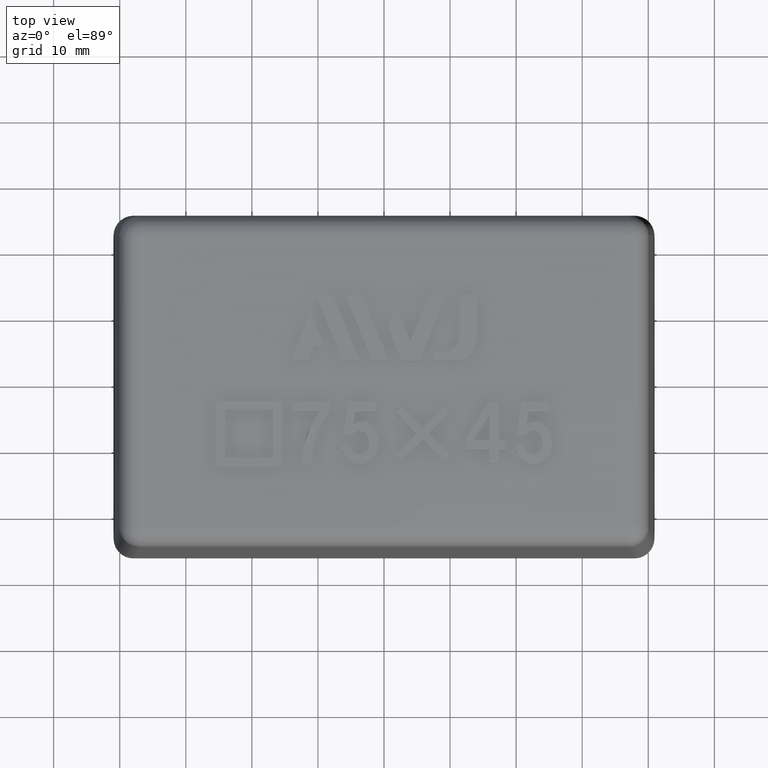
[diagram: clean part render]
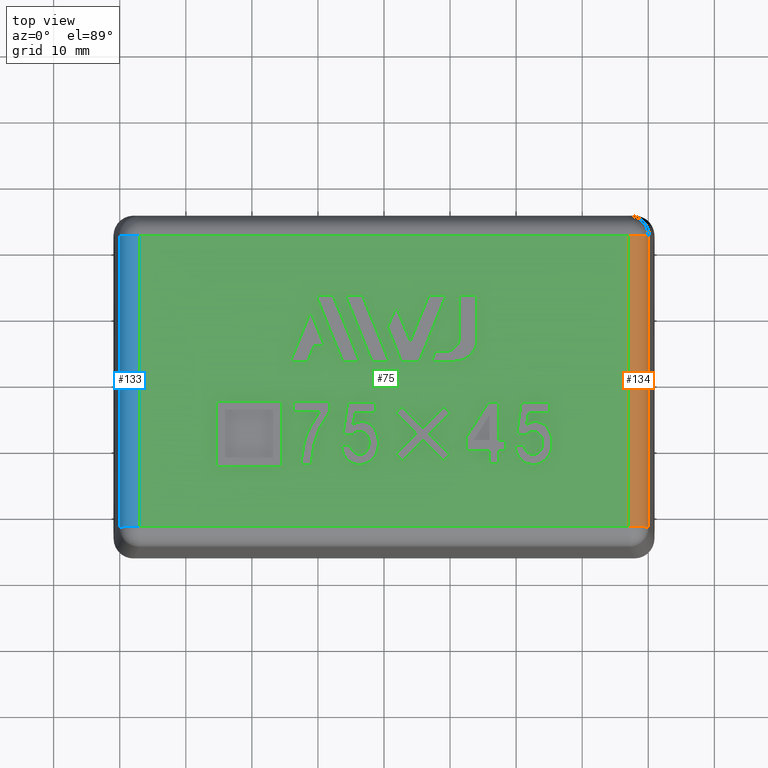
[diagram: same view with three faces highlighted in distinct colors, each labeled with its STEP entity id]
A machine part, top view with three faces highlighted in distinct colors.
Their STEP definitions:

[orange] entity #134 — the highlighted cylindrical surface (edge-blend (fillet) strip) has radius 3 mm, axis along (0, -1, 0).
#134 = ADVANCED_FACE( '', ( #336 ), #337, .T. );
#336 = FACE_OUTER_BOUND( '', #612, .T. );
#337 = CYLINDRICAL_SURFACE( '', #613, 3.00000000000000 );
#612 = EDGE_LOOP( '', ( #1304, #1305, #1306, #1307 ) );
#613 = AXIS2_PLACEMENT_3D( '', #1308, #1309, #1310 );
#1304 = ORIENTED_EDGE( '', *, *, #2053, .T. );
#1305 = ORIENTED_EDGE( '', *, *, #2054, .F. );
#1306 = ORIENTED_EDGE( '', *, *, #2048, .F. );
#1307 = ORIENTED_EDGE( '', *, *, #1895, .F. );
#1308 = CARTESIAN_POINT( '', ( 37.0631663926629, -25.5000000000000, 50.0000000000000 ) );
#1309 = DIRECTION( '', ( 0.000000000000000, -1.00000000000000, 0.000000000000000 ) );
#1310 = DIRECTION( '', ( 0.000000000000000, 0.000000000000000, 1.00000000000000 ) );
#1895 = EDGE_CURVE( '', #2271, #2272, #2273, .F. );
#2048 = EDGE_CURVE( '', #2272, #2527, #2528, .T. );
#2053 = EDGE_CURVE( '', #2271, #2534, #2535, .F. );
#2054 = EDGE_CURVE( '', #2527, #2534, #2536, .F. );
#2271 = VERTEX_POINT( '', #2900 );
#2272 = VERTEX_POINT( '', #2901 );
#2273 = LINE( '', #2902, #2903 );
#2527 = VERTEX_POINT( '', #3447 );
#2528 = CIRCLE( '', #3448, 3.00000000000000 );
#2534 = VERTEX_POINT( '', #3455 );
#2535 = CIRCLE( '', #3456, 3.00000000000000 );
#2536 = LINE( '', #3457, #3458 );
#2900 = CARTESIAN_POINT( '', ( 37.0631663926629, -22.0631663926628, 53.0000000000000 ) );
#2901 = CARTESIAN_POINT( '', ( 37.0631663926629, 22.0631663926628, 53.0000000000000 ) );
#2902 = CARTESIAN_POINT( '', ( 37.0631663926629, 25.0112581820099, 53.0000000000000 ) );
#2903 = VECTOR( '', #3776, 1000.00000000000 );
#3447 = CARTESIAN_POINT( '', ( 40.0627094781320, 22.0631663926628, 50.0523572193119 ) );
#3448 = AXIS2_PLACEMENT_3D( '', #3851, #3852, #3853 );
#3455 = CARTESIAN_POINT( '', ( 40.0627094781320, -22.0631663926628, 50.0523572193119 ) );
#3456 = AXIS2_PLACEMENT_3D( '', #3864, #3865, #3866 );
#3457 = CARTESIAN_POINT( '', ( 40.0627094781320, -25.0112581820099, 50.0523572193119 ) );
#3458 = VECTOR( '', #3867, 1000.00000000000 );
#3776 = DIRECTION( '', ( 0.000000000000000, -1.00000000000000, 0.000000000000000 ) );
#3851 = CARTESIAN_POINT( '', ( 37.0631663926629, 22.0631663926628, 50.0000000000000 ) );
#3852 = DIRECTION( '', ( 1.15665848200709E-015, 1.00000000000000, 0.000000000000000 ) );
#3853 = DIRECTION( '', ( -1.00000000000000, 1.15665848200709E-015, 0.000000000000000 ) );
#3864 = CARTESIAN_POINT( '', ( 37.0631663926628, -22.0631663926628, 50.0000000000000 ) );
#3865 = DIRECTION( '', ( -2.01864739371190E-017, -1.00000000000000, 1.15648231731787E-015 ) );
#3866 = DIRECTION( '', ( 0.000000000000000, -1.15648231731787E-015, -1.00000000000000 ) );
#3867 = DIRECTION( '', ( 0.000000000000000, 1.00000000000000, 0.000000000000000 ) );

[blue] entity #133 — the highlighted cylindrical surface (edge-blend (fillet) strip) has radius 3 mm, axis along (0, 1, 0).
#133 = ADVANCED_FACE( '', ( #334 ), #335, .T. );
#334 = FACE_OUTER_BOUND( '', #610, .T. );
#335 = CYLINDRICAL_SURFACE( '', #611, 3.00000000000000 );
#610 = EDGE_LOOP( '', ( #1297, #1298, #1299, #1300 ) );
#611 = AXIS2_PLACEMENT_3D( '', #1301, #1302, #1303 );
#1297 = ORIENTED_EDGE( '', *, *, #2052, .T. );
#1298 = ORIENTED_EDGE( '', *, *, #1897, .F. );
#1299 = ORIENTED_EDGE( '', *, *, #2047, .F. );
#1300 = ORIENTED_EDGE( '', *, *, #1930, .F. );
#1301 = CARTESIAN_POINT( '', ( -37.0631663926628, -25.5000000000000, 50.0000000000000 ) );
#1302 = DIRECTION( '', ( 0.000000000000000, 1.00000000000000, 0.000000000000000 ) );
#1303 = DIRECTION( '', ( 0.000000000000000, 0.000000000000000, -1.00000000000000 ) );
#1897 = EDGE_CURVE( '', #2274, #2276, #2277, .F. );
#1930 = EDGE_CURVE( '', #2340, #2342, #2343, .F. );
#2047 = EDGE_CURVE( '', #2342, #2274, #2526, .T. );
#2052 = EDGE_CURVE( '', #2340, #2276, #2533, .F. );
#2274 = VERTEX_POINT( '', #2904 );
#2276 = VERTEX_POINT( '', #2907 );
#2277 = LINE( '', #2908, #2909 );
#2340 = VERTEX_POINT( '', #3056 );
#2342 = VERTEX_POINT( '', #3059 );
#2343 = LINE( '', #3060, #3061 );
#2526 = CIRCLE( '', #3446, 3.00000000000000 );
#2533 = CIRCLE( '', #3454, 3.00000000000000 );
#2904 = CARTESIAN_POINT( '', ( -37.0631663926628, 22.0631663926628, 53.0000000000000 ) );
#2907 = CARTESIAN_POINT( '', ( -37.0631663926628, -22.0631663926628, 53.0000000000000 ) );
#2908 = CARTESIAN_POINT( '', ( -37.0631663926628, -25.0112581820099, 53.0000000000000 ) );
#2909 = VECTOR( '', #3778, 1000.00000000000 );
#3056 = CARTESIAN_POINT( '', ( -40.0627094781320, -22.0631663926628, 50.0523572193119 ) );
#3059 = CARTESIAN_POINT( '', ( -40.0627094781320, 22.0631663926628, 50.0523572193119 ) );
#3060 = CARTESIAN_POINT( '', ( -40.0627094781320, 25.0112581820099, 50.0523572193119 ) );
#3061 = VECTOR( '', #3782, 1000.00000000000 );
#3446 = AXIS2_PLACEMENT_3D( '', #3848, #3849, #3850 );
#3454 = AXIS2_PLACEMENT_3D( '', #3861, #3862, #3863 );
#3778 = DIRECTION( '', ( 0.000000000000000, 1.00000000000000, 0.000000000000000 ) );
#3782 = DIRECTION( '', ( 0.000000000000000, -1.00000000000000, 0.000000000000000 ) );
#3848 = CARTESIAN_POINT( '', ( -37.0631663926628, 22.0631663926628, 50.0000000000000 ) );
#3849 = DIRECTION( '', ( -2.01864739371190E-017, 1.00000000000000, -1.15648231731787E-015 ) );
#3850 = DIRECTION( '', ( 0.000000000000000, 1.15648231731787E-015, 1.00000000000000 ) );
#3861 = CARTESIAN_POINT( '', ( -37.0631663926628, -22.0631663926628, 50.0000000000000 ) );
#3862 = DIRECTION( '', ( 0.000000000000000, -1.00000000000000, 0.000000000000000 ) );
#3863 = DIRECTION( '', ( 0.000000000000000, 0.000000000000000, -1.00000000000000 ) );

[green] entity #75 — the highlighted planar face has unit normal (0, 0, 1).
#75 = ADVANCED_FACE( '', ( #205, #206, #207, #208, #209, #210, #211, #212, #213, #214, #215, #216 ), #217, .T. );
#205 = FACE_BOUND( '', #477, .T. );
#206 = FACE_BOUND( '', #478, .T. );
#207 = FACE_BOUND( '', #479, .T. );
#208 = FACE_BOUND( '', #480, .T. );
#209 = FACE_BOUND( '', #481, .T. );
#210 = FACE_BOUND( '', #482, .T. );
#211 = FACE_BOUND( '', #483, .T. );
#212 = FACE_BOUND( '', #484, .T. );
#213 = FACE_OUTER_BOUND( '', #485, .T. );
#214 = FACE_BOUND( '', #486, .T. );
#215 = FACE_BOUND( '', #487, .T. );
#216 = FACE_BOUND( '', #488, .T. );
#217 = PLANE( '', #489 );
#477 = EDGE_LOOP( '', ( #757, #758, #759, #760, #761 ) );
#478 = EDGE_LOOP( '', ( #762, #763, #764, #765 ) );
#479 = EDGE_LOOP( '', ( #766, #767, #768, #769 ) );
#480 = EDGE_LOOP( '', ( #770, #771, #772, #773, #774, #775, #776 ) );
#481 = EDGE_LOOP( '', ( #777, #778, #779, #780, #781, #782, #783, #784 ) );
#482 = EDGE_LOOP( '', ( #785, #786, #787, #788, #789, #790, #791, #792, #793, #794, #795 ) );
#483 = EDGE_LOOP( '', ( #796, #797, #798, #799, #800, #801, #802, #803, #804, #805 ) );
#484 = EDGE_LOOP( '', ( #806, #807, #808, #809 ) );
#485 = EDGE_LOOP( '', ( #810, #811, #812, #813 ) );
#486 = EDGE_LOOP( '', ( #814, #815, #816, #817, #818, #819, #820 ) );
#487 = EDGE_LOOP( '', ( #821, #822, #823, #824, #825, #826, #827, #828, #829, #830, #831, #832 ) );
#488 = EDGE_LOOP( '', ( #833, #834, #835, #836, #837, #838, #839, #840, #841, #842 ) );
#489 = AXIS2_PLACEMENT_3D( '', #843, #844, #845 );
#757 = ORIENTED_EDGE( '', *, *, #1842, .F. );
#758 = ORIENTED_EDGE( '', *, *, #1843, .F. );
#759 = ORIENTED_EDGE( '', *, *, #1844, .F. );
#760 = ORIENTED_EDGE( '', *, *, #1845, .F. );
#761 = ORIENTED_EDGE( '', *, *, #1846, .F. );
#762 = ORIENTED_EDGE( '', *, *, #1847, .F. );
#763 = ORIENTED_EDGE( '', *, *, #1848, .F. );
#764 = ORIENTED_EDGE( '', *, *, #1849, .F. );
#765 = ORIENTED_EDGE( '', *, *, #1850, .F. );
#766 = ORIENTED_EDGE( '', *, *, #1851, .F. );
#767 = ORIENTED_EDGE( '', *, *, #1852, .F. );
#768 = ORIENTED_EDGE( '', *, *, #1853, .F. );
#769 = ORIENTED_EDGE( '', *, *, #1854, .F. );
#770 = ORIENTED_EDGE( '', *, *, #1855, .F. );
#771 = ORIENTED_EDGE( '', *, *, #1856, .F. );
#772 = ORIENTED_EDGE( '', *, *, #1857, .F. );
#773 = ORIENTED_EDGE( '', *, *, #1858, .F. );
#774 = ORIENTED_EDGE( '', *, *, #1859, .F. );
#775 = ORIENTED_EDGE( '', *, *, #1860, .F. );
#776 = ORIENTED_EDGE( '', *, *, #1861, .F. );
#777 = ORIENTED_EDGE( '', *, *, #1862, .F. );
#778 = ORIENTED_EDGE( '', *, *, #1863, .F. );
#779 = ORIENTED_EDGE( '', *, *, #1864, .F. );
#780 = ORIENTED_EDGE( '', *, *, #1865, .F. );
#781 = ORIENTED_EDGE( '', *, *, #1866, .F. );
#782 = ORIENTED_EDGE( '', *, *, #1867, .F. );
#783 = ORIENTED_EDGE( '', *, *, #1868, .F. );
#784 = ORIENTED_EDGE( '', *, *, #1869, .F. );
#785 = ORIENTED_EDGE( '', *, *, #1870, .T. );
#786 = ORIENTED_EDGE( '', *, *, #1871, .T. );
#787 = ORIENTED_EDGE( '', *, *, #1872, .T. );
#788 = ORIENTED_EDGE( '', *, *, #1873, .T. );
#789 = ORIENTED_EDGE( '', *, *, #1874, .T. );
#790 = ORIENTED_EDGE( '', *, *, #1875, .T. );
#791 = ORIENTED_EDGE( '', *, *, #1876, .T. );
#792 = ORIENTED_EDGE( '', *, *, #1877, .T. );
#793 = ORIENTED_EDGE( '', *, *, #1878, .T. );
#794 = ORIENTED_EDGE( '', *, *, #1879, .T. );
#795 = ORIENTED_EDGE( '', *, *, #1880, .T. );
#796 = ORIENTED_EDGE( '', *, *, #1881, .T. );
#797 = ORIENTED_EDGE( '', *, *, #1882, .T. );
#798 = ORIENTED_EDGE( '', *, *, #1883, .T. );
#799 = ORIENTED_EDGE( '', *, *, #1884, .T. );
#800 = ORIENTED_EDGE( '', *, *, #1885, .T. );
#801 = ORIENTED_EDGE( '', *, *, #1886, .T. );
#802 = ORIENTED_EDGE( '', *, *, #1887, .T. );
#803 = ORIENTED_EDGE( '', *, *, #1888, .T. );
#804 = ORIENTED_EDGE( '', *, *, #1889, .T. );
#805 = ORIENTED_EDGE( '', *, *, #1890, .T. );
#806 = ORIENTED_EDGE( '', *, *, #1891, .T. );
#807 = ORIENTED_EDGE( '', *, *, #1892, .T. );
#808 = ORIENTED_EDGE( '', *, *, #1893, .T. );
#809 = ORIENTED_EDGE( '', *, *, #1894, .T. );
#810 = ORIENTED_EDGE( '', *, *, #1895, .T. );
#811 = ORIENTED_EDGE( '', *, *, #1896, .T. );
#812 = ORIENTED_EDGE( '', *, *, #1897, .T. );
#813 = ORIENTED_EDGE( '', *, *, #1898, .T. );
#814 = ORIENTED_EDGE( '', *, *, #1899, .T. );
#815 = ORIENTED_EDGE( '', *, *, #1900, .T. );
#816 = ORIENTED_EDGE( '', *, *, #1901, .T. );
#817 = ORIENTED_EDGE( '', *, *, #1902, .T. );
#818 = ORIENTED_EDGE( '', *, *, #1903, .T. );
#819 = ORIENTED_EDGE( '', *, *, #1904, .T. );
#820 = ORIENTED_EDGE( '', *, *, #1905, .T. );
#821 = ORIENTED_EDGE( '', *, *, #1906, .T. );
#822 = ORIENTED_EDGE( '', *, *, #1907, .T. );
#823 = ORIENTED_EDGE( '', *, *, #1908, .T. );
#824 = ORIENTED_EDGE( '', *, *, #1909, .T. );
#825 = ORIENTED_EDGE( '', *, *, #1910, .T. );
#826 = ORIENTED_EDGE( '', *, *, #1911, .T. );
#827 = ORIENTED_EDGE( '', *, *, #1912, .T. );
#828 = ORIENTED_EDGE( '', *, *, #1913, .T. );
#829 = ORIENTED_EDGE( '', *, *, #1914, .T. );
#830 = ORIENTED_EDGE( '', *, *, #1915, .T. );
#831 = ORIENTED_EDGE( '', *, *, #1916, .T. );
#832 = ORIENTED_EDGE( '', *, *, #1917, .T. );
#833 = ORIENTED_EDGE( '', *, *, #1918, .T. );
#834 = ORIENTED_EDGE( '', *, *, #1919, .T. );
#835 = ORIENTED_EDGE( '', *, *, #1920, .T. );
#836 = ORIENTED_EDGE( '', *, *, #1921, .T. );
#837 = ORIENTED_EDGE( '', *, *, #1922, .T. );
#838 = ORIENTED_EDGE( '', *, *, #1923, .T. );
#839 = ORIENTED_EDGE( '', *, *, #1924, .T. );
#840 = ORIENTED_EDGE( '', *, *, #1925, .T. );
#841 = ORIENTED_EDGE( '', *, *, #1926, .T. );
#842 = ORIENTED_EDGE( '', *, *, #1927, .T. );
#843 = CARTESIAN_POINT( '', ( -40.5000000000000, -25.5000000000000, 53.0000000000000 ) );
#844 = DIRECTION( '', ( 0.000000000000000, 0.000000000000000, 1.00000000000000 ) );
#845 = DIRECTION( '', ( 0.000000000000000, -1.00000000000000, 0.000000000000000 ) );
#1842 = EDGE_CURVE( '', #2165, #2166, #2167, .T. );
#1843 = EDGE_CURVE( '', #2168, #2165, #2169, .T. );
#1844 = EDGE_CURVE( '', #2170, #2168, #2171, .T. );
#1845 = EDGE_CURVE( '', #2172, #2170, #2173, .T. );
#1846 = EDGE_CURVE( '', #2166, #2172, #2174, .T. );
#1847 = EDGE_CURVE( '', #2175, #2176, #2177, .T. );
#1848 = EDGE_CURVE( '', #2178, #2175, #2179, .T. );
#1849 = EDGE_CURVE( '', #2180, #2178, #2181, .T. );
#1850 = EDGE_CURVE( '', #2176, #2180, #2182, .T. );
#1851 = EDGE_CURVE( '', #2183, #2184, #2185, .T. );
#1852 = EDGE_CURVE( '', #2186, #2183, #2187, .T. );
#1853 = EDGE_CURVE( '', #2188, #2186, #2189, .T. );
#1854 = EDGE_CURVE( '', #2184, #2188, #2190, .T. );
#1855 = EDGE_CURVE( '', #2191, #2192, #2193, .T. );
#1856 = EDGE_CURVE( '', #2194, #2191, #2195, .T. );
#1857 = EDGE_CURVE( '', #2196, #2194, #2197, .T. );
#1858 = EDGE_CURVE( '', #2198, #2196, #2199, .T. );
#1859 = EDGE_CURVE( '', #2200, #2198, #2201, .T. );
#1860 = EDGE_CURVE( '', #2202, #2200, #2203, .T. );
#1861 = EDGE_CURVE( '', #2192, #2202, #2204, .T. );
#1862 = EDGE_CURVE( '', #2205, #2206, #2207, .T. );
#1863 = EDGE_CURVE( '', #2208, #2205, #2209, .T. );
#1864 = EDGE_CURVE( '', #2210, #2208, #2211, .T. );
#1865 = EDGE_CURVE( '', #2212, #2210, #2213, .T. );
#1866 = EDGE_CURVE( '', #2214, #2212, #2215, .T. );
#1867 = EDGE_CURVE( '', #2216, #2214, #2217, .T. );
#1868 = EDGE_CURVE( '', #2218, #2216, #2219, .T. );
#1869 = EDGE_CURVE( '', #2206, #2218, #2220, .T. );
#1870 = EDGE_CURVE( '', #2221, #2222, #2223, .T. );
#1871 = EDGE_CURVE( '', #2222, #2224, #2225, .T. );
#1872 = EDGE_CURVE( '', #2224, #2226, #2227, .T. );
#1873 = EDGE_CURVE( '', #2226, #2228, #2229, .T. );
#1874 = EDGE_CURVE( '', #2228, #2230, #2231, .T. );
#1875 = EDGE_CURVE( '', #2230, #2232, #2233, .T. );
#1876 = EDGE_CURVE( '', #2232, #2234, #2235, .T. );
#1877 = EDGE_CURVE( '', #2234, #2236, #2237, .T. );
#1878 = EDGE_CURVE( '', #2236, #2238, #2239, .T. );
#1879 = EDGE_CURVE( '', #2238, #2240, #2241, .T. );
#1880 = EDGE_CURVE( '', #2240, #2221, #2242, .T. );
#1881 = EDGE_CURVE( '', #2243, #2244, #2245, .T. );
#1882 = EDGE_CURVE( '', #2244, #2246, #2247, .T. );
#1883 = EDGE_CURVE( '', #2246, #2248, #2249, .T. );
#1884 = EDGE_CURVE( '', #2248, #2250, #2251, .T. );
#1885 = EDGE_CURVE( '', #2250, #2252, #2253, .T. );
#1886 = EDGE_CURVE( '', #2252, #2254, #2255, .T. );
#1887 = EDGE_CURVE( '', #2254, #2256, #2257, .T. );
#1888 = EDGE_CURVE( '', #2256, #2258, #2259, .T. );
#1889 = EDGE_CURVE( '', #2258, #2260, #2261, .T. );
#1890 = EDGE_CURVE( '', #2260, #2243, #2262, .T. );
#1891 = EDGE_CURVE( '', #2263, #2264, #2265, .T. );
#1892 = EDGE_CURVE( '', #2264, #2266, #2267, .T. );
#1893 = EDGE_CURVE( '', #2266, #2268, #2269, .T. );
#1894 = EDGE_CURVE( '', #2268, #2263, #2270, .T. );
#1895 = EDGE_CURVE( '', #2271, #2272, #2273, .F. );
#1896 = EDGE_CURVE( '', #2272, #2274, #2275, .F. );
#1897 = EDGE_CURVE( '', #2274, #2276, #2277, .F. );
#1898 = EDGE_CURVE( '', #2276, #2271, #2278, .F. );
#1899 = EDGE_CURVE( '', #2279, #2280, #2281, .T. );
#1900 = EDGE_CURVE( '', #2280, #2282, #2283, .T. );
#1901 = EDGE_CURVE( '', #2282, #2284, #2285, .T. );
#1902 = EDGE_CURVE( '', #2284, #2286, #2287, .T. );
#1903 = EDGE_CURVE( '', #2286, #2288, #2289, .T. );
#1904 = EDGE_CURVE( '', #2288, #2290, #2291, .T. );
#1905 = EDGE_CURVE( '', #2290, #2279, #2292, .T. );
#1906 = EDGE_CURVE( '', #2293, #2294, #2295, .T. );
#1907 = EDGE_CURVE( '', #2294, #2296, #2297, .T. );
#1908 = EDGE_CURVE( '', #2296, #2298, #2299, .T. );
#1909 = EDGE_CURVE( '', #2298, #2300, #2301, .T. );
#1910 = EDGE_CURVE( '', #2300, #2302, #2303, .T. );
#1911 = EDGE_CURVE( '', #2302, #2304, #2305, .T. );
#1912 = EDGE_CURVE( '', #2304, #2306, #2307, .T. );
#1913 = EDGE_CURVE( '', #2306, #2308, #2309, .T. );
#1914 = EDGE_CURVE( '', #2308, #2310, #2311, .T. );
#1915 = EDGE_CURVE( '', #2310, #2312, #2313, .T. );
#1916 = EDGE_CURVE( '', #2312, #2314, #2315, .T. );
#1917 = EDGE_CURVE( '', #2314, #2293, #2316, .T. );
#1918 = EDGE_CURVE( '', #2317, #2318, #2319, .T. );
#1919 = EDGE_CURVE( '', #2318, #2320, #2321, .T. );
#1920 = EDGE_CURVE( '', #2320, #2322, #2323, .T. );
#1921 = EDGE_CURVE( '', #2322, #2324, #2325, .T. );
#1922 = EDGE_CURVE( '', #2324, #2326, #2327, .T. );
#1923 = EDGE_CURVE( '', #2326, #2328, #2329, .T. );
#1924 = EDGE_CURVE( '', #2328, #2330, #2331, .T. );
#1925 = EDGE_CURVE( '', #2330, #2332, #2333, .T. );
#1926 = EDGE_CURVE( '', #2332, #2334, #2335, .T. );
#1927 = EDGE_CURVE( '', #2334, #2317, #2336, .T. );
#2165 = VERTEX_POINT( '', #2698 );
#2166 = VERTEX_POINT( '', #2699 );
#2167 = LINE( '', #2700, #2701 );
#2168 = VERTEX_POINT( '', #2702 );
#2169 = LINE( '', #2703, #2704 );
#2170 = VERTEX_POINT( '', #2705 );
#2171 = LINE( '', #2706, #2707 );
#2172 = VERTEX_POINT( '', #2708 );
#2173 = LINE( '', #2709, #2710 );
#2174 = LINE( '', #2711, #2712 );
#2175 = VERTEX_POINT( '', #2713 );
#2176 = VERTEX_POINT( '', #2714 );
#2177 = LINE( '', #2715, #2716 );
#2178 = VERTEX_POINT( '', #2717 );
#2179 = LINE( '', #2718, #2719 );
#2180 = VERTEX_POINT( '', #2720 );
#2181 = LINE( '', #2721, #2722 );
#2182 = LINE( '', #2723, #2724 );
#2183 = VERTEX_POINT( '', #2725 );
#2184 = VERTEX_POINT( '', #2726 );
#2185 = LINE( '', #2727, #2728 );
#2186 = VERTEX_POINT( '', #2729 );
#2187 = LINE( '', #2730, #2731 );
#2188 = VERTEX_POINT( '', #2732 );
#2189 = LINE( '', #2733, #2734 );
#2190 = LINE( '', #2735, #2736 );
#2191 = VERTEX_POINT( '', #2737 );
#2192 = VERTEX_POINT( '', #2738 );
#2193 = LINE( '', #2739, #2740 );
#2194 = VERTEX_POINT( '', #2741 );
#2195 = LINE( '', #2742, #2743 );
#2196 = VERTEX_POINT( '', #2744 );
#2197 = LINE( '', #2745, #2746 );
#2198 = VERTEX_POINT( '', #2747 );
#2199 = LINE( '', #2748, #2749 );
#2200 = VERTEX_POINT( '', #2750 );
#2201 = LINE( '', #2751, #2752 );
#2202 = VERTEX_POINT( '', #2753 );
#2203 = LINE( '', #2754, #2755 );
#2204 = LINE( '', #2756, #2757 );
#2205 = VERTEX_POINT( '', #2758 );
#2206 = VERTEX_POINT( '', #2759 );
#2207 = LINE( '', #2760, #2761 );
#2208 = VERTEX_POINT( '', #2762 );
#2209 = LINE( '', #2763, #2764 );
#2210 = VERTEX_POINT( '', #2765 );
#2211 = LINE( '', #2766, #2767 );
#2212 = VERTEX_POINT( '', #2768 );
#2213 = CIRCLE( '', #2769, 3.33666750000000 );
#2214 = VERTEX_POINT( '', #2770 );
#2215 = LINE( '', #2771, #2772 );
#2216 = VERTEX_POINT( '', #2773 );
#2217 = LINE( '', #2774, #2775 );
#2218 = VERTEX_POINT( '', #2776 );
#2219 = LINE( '', #2777, #2778 );
#2220 = CIRCLE( '', #2779, 2.22444500000000 );
#2221 = VERTEX_POINT( '', #2780 );
#2222 = VERTEX_POINT( '', #2781 );
#2223 = B_SPLINE_CURVE_WITH_KNOTS( '', 2, ( #2782, #2783, #2784 ), .UNSPECIFIED., .F., .F., ( 3, 3 ), ( 10.0000000000000, 11.0000000000000 ), .UNSPECIFIED. );
#2224 = VERTEX_POINT( '', #2785 );
#2225 = B_SPLINE_CURVE_WITH_KNOTS( '', 2, ( #2786, #2787, #2788 ), .UNSPECIFIED., .F., .F., ( 3, 3 ), ( 0.000000000000000, 1.00000000000000 ), .UNSPECIFIED. );
#2226 = VERTEX_POINT( '', #2789 );
#2227 = B_SPLINE_CURVE_WITH_KNOTS( '', 2, ( #2790, #2791, #2792 ), .UNSPECIFIED., .F., .F., ( 3, 3 ), ( 1.00000000000000, 2.00000000000000 ), .UNSPECIFIED. );
#2228 = VERTEX_POINT( '', #2793 );
#2229 = B_SPLINE_CURVE_WITH_KNOTS( '', 2, ( #2794, #2795, #2796 ), .UNSPECIFIED., .F., .F., ( 3, 3 ), ( 2.00000000000000, 3.00000000000000 ), .UNSPECIFIED. );
#2230 = VERTEX_POINT( '', #2797 );
#2231 = B_SPLINE_CURVE_WITH_KNOTS( '', 2, ( #2798, #2799, #2800 ), .UNSPECIFIED., .F., .F., ( 3, 3 ), ( 3.00000000000000, 4.00000000000000 ), .UNSPECIFIED. );
#2232 = VERTEX_POINT( '', #2801 );
#2233 = B_SPLINE_CURVE_WITH_KNOTS( '', 2, ( #2802, #2803, #2804 ), .UNSPECIFIED., .F., .F., ( 3, 3 ), ( 4.00000000000000, 5.00000000000000 ), .UNSPECIFIED. );
#2234 = VERTEX_POINT( '', #2805 );
#2235 = B_SPLINE_CURVE_WITH_KNOTS( '', 2, ( #2806, #2807, #2808 ), .UNSPECIFIED., .F., .F., ( 3, 3 ), ( 5.00000000000000, 6.00000000000000 ), .UNSPECIFIED. );
#2236 = VERTEX_POINT( '', #2809 );
#2237 = B_SPLINE_CURVE_WITH_KNOTS( '', 2, ( #2810, #2811, #2812 ), .UNSPECIFIED., .F., .F., ( 3, 3 ), ( 6.00000000000000, 7.00000000000000 ), .UNSPECIFIED. );
#2238 = VERTEX_POINT( '', #2813 );
#2239 = B_SPLINE_CURVE_WITH_KNOTS( '', 2, ( #2814, #2815, #2816 ), .UNSPECIFIED., .F., .F., ( 3, 3 ), ( 7.00000000000000, 8.00000000000000 ), .UNSPECIFIED. );
#2240 = VERTEX_POINT( '', #2817 );
#2241 = B_SPLINE_CURVE_WITH_KNOTS( '', 2, ( #2818, #2819, #2820 ), .UNSPECIFIED., .F., .F., ( 3, 3 ), ( 8.00000000000000, 9.00000000000000 ), .UNSPECIFIED. );
#2242 = B_SPLINE_CURVE_WITH_KNOTS( '', 2, ( #2821, #2822, #2823 ), .UNSPECIFIED., .F., .F., ( 3, 3 ), ( 9.00000000000000, 10.0000000000000 ), .UNSPECIFIED. );
#2243 = VERTEX_POINT( '', #2824 );
#2244 = VERTEX_POINT( '', #2825 );
#2245 = B_SPLINE_CURVE_WITH_KNOTS( '', 2, ( #2826, #2827, #2828, #2829, #2830, #2831, #2832, #2833, #2834, #2835, #2836, #2837, #2838 ), .UNSPECIFIED., .F., .F., ( 3, 2, 2, 2, 2, 2, 3 ), ( 14.0000000000000, 15.0000000000000, 16.0000000000000, 17.0000000000000, 18.0000000000000, 19.0000000000000, 20.0000000000000 ), .UNSPECIFIED. );
#2246 = VERTEX_POINT( '', #2839 );
#2247 = B_SPLINE_CURVE_WITH_KNOTS( '', 2, ( #2840, #2841, #2842 ), .UNSPECIFIED., .F., .F., ( 3, 3 ), ( 0.000000000000000, 1.00000000000000 ), .UNSPECIFIED. );
#2248 = VERTEX_POINT( '', #2843 );
#2249 = B_SPLINE_CURVE_WITH_KNOTS( '', 2, ( #2844, #2845, #2846 ), .UNSPECIFIED., .F., .F., ( 3, 3 ), ( 1.00000000000000, 2.00000000000000 ), .UNSPECIFIED. );
#2250 = VERTEX_POINT( '', #2847 );
#2251 = B_SPLINE_CURVE_WITH_KNOTS( '', 2, ( #2848, #2849, #2850, #2851, #2852, #2853, #2854, #2855, #2856, #2857, #2858, #2859, #2860 ), .UNSPECIFIED., .F., .F., ( 3, 2, 2, 2, 2, 2, 3 ), ( 2.00000000000000, 3.00000000000000, 4.00000000000000, 5.00000000000000, 6.00000000000000, 7.00000000000000, 8.00000000000000 ), .UNSPECIFIED. );
#2252 = VERTEX_POINT( '', #2861 );
#2253 = B_SPLINE_CURVE_WITH_KNOTS( '', 2, ( #2862, #2863, #2864 ), .UNSPECIFIED., .F., .F., ( 3, 3 ), ( 8.00000000000000, 9.00000000000000 ), .UNSPECIFIED. );
#2254 = VERTEX_POINT( '', #2865 );
#2255 = B_SPLINE_CURVE_WITH_KNOTS( '', 2, ( #2866, #2867, #2868 ), .UNSPECIFIED., .F., .F., ( 3, 3 ), ( 9.00000000000000, 10.0000000000000 ), .UNSPECIFIED. );
#2256 = VERTEX_POINT( '', #2869 );
#2257 = B_SPLINE_CURVE_WITH_KNOTS( '', 2, ( #2870, #2871, #2872 ), .UNSPECIFIED., .F., .F., ( 3, 3 ), ( 10.0000000000000, 11.0000000000000 ), .UNSPECIFIED. );
#2258 = VERTEX_POINT( '', #2873 );
#2259 = B_SPLINE_CURVE_WITH_KNOTS( '', 2, ( #2874, #2875, #2876 ), .UNSPECIFIED., .F., .F., ( 3, 3 ), ( 11.0000000000000, 12.0000000000000 ), .UNSPECIFIED. );
#2260 = VERTEX_POINT( '', #2877 );
#2261 = B_SPLINE_CURVE_WITH_KNOTS( '', 2, ( #2878, #2879, #2880 ), .UNSPECIFIED., .F., .F., ( 3, 3 ), ( 12.0000000000000, 13.0000000000000 ), .UNSPECIFIED. );
#2262 = B_SPLINE_CURVE_WITH_KNOTS( '', 2, ( #2881, #2882, #2883 ), .UNSPECIFIED., .F., .F., ( 3, 3 ), ( 13.0000000000000, 14.0000000000000 ), .UNSPECIFIED. );
#2263 = VERTEX_POINT( '', #2884 );
#2264 = VERTEX_POINT( '', #2885 );
#2265 = B_SPLINE_CURVE_WITH_KNOTS( '', 2, ( #2886, #2887, #2888 ), .UNSPECIFIED., .F., .F., ( 3, 3 ), ( 3.00000000000000, 4.00000000000000 ), .UNSPECIFIED. );
#2266 = VERTEX_POINT( '', #2889 );
#2267 = B_SPLINE_CURVE_WITH_KNOTS( '', 2, ( #2890, #2891, #2892 ), .UNSPECIFIED., .F., .F., ( 3, 3 ), ( 0.000000000000000, 1.00000000000000 ), .UNSPECIFIED. );
#2268 = VERTEX_POINT( '', #2893 );
#2269 = B_SPLINE_CURVE_WITH_KNOTS( '', 2, ( #2894, #2895, #2896 ), .UNSPECIFIED., .F., .F., ( 3, 3 ), ( 1.00000000000000, 2.00000000000000 ), .UNSPECIFIED. );
#2270 = B_SPLINE_CURVE_WITH_KNOTS( '', 2, ( #2897, #2898, #2899 ), .UNSPECIFIED., .F., .F., ( 3, 3 ), ( 2.00000000000000, 3.00000000000000 ), .UNSPECIFIED. );
#2271 = VERTEX_POINT( '', #2900 );
#2272 = VERTEX_POINT( '', #2901 );
#2273 = LINE( '', #2902, #2903 );
#2274 = VERTEX_POINT( '', #2904 );
#2275 = LINE( '', #2905, #2906 );
#2276 = VERTEX_POINT( '', #2907 );
#2277 = LINE( '', #2908, #2909 );
#2278 = LINE( '', #2910, #2911 );
#2279 = VERTEX_POINT( '', #2912 );
#2280 = VERTEX_POINT( '', #2913 );
#2281 = B_SPLINE_CURVE_WITH_KNOTS( '', 2, ( #2914, #2915, #2916 ), .UNSPECIFIED., .F., .F., ( 3, 3 ), ( 8.00000000000000, 9.00000000000000 ), .UNSPECIFIED. );
#2282 = VERTEX_POINT( '', #2917 );
#2283 = B_SPLINE_CURVE_WITH_KNOTS( '', 2, ( #2918, #2919, #2920 ), .UNSPECIFIED., .F., .F., ( 3, 3 ), ( 0.000000000000000, 1.00000000000000 ), .UNSPECIFIED. );
#2284 = VERTEX_POINT( '', #2921 );
#2285 = B_SPLINE_CURVE_WITH_KNOTS( '', 2, ( #2922, #2923, #2924 ), .UNSPECIFIED., .F., .F., ( 3, 3 ), ( 1.00000000000000, 2.00000000000000 ), .UNSPECIFIED. );
#2286 = VERTEX_POINT( '', #2925 );
#2287 = B_SPLINE_CURVE_WITH_KNOTS( '', 2, ( #2926, #2927, #2928 ), .UNSPECIFIED., .F., .F., ( 3, 3 ), ( 2.00000000000000, 3.00000000000000 ), .UNSPECIFIED. );
#2288 = VERTEX_POINT( '', #2929 );
#2289 = B_SPLINE_CURVE_WITH_KNOTS( '', 2, ( #2930, #2931, #2932, #2933, #2934 ), .UNSPECIFIED., .F., .F., ( 3, 2, 3 ), ( 3.00000000000000, 4.00000000000000, 5.00000000000000 ), .UNSPECIFIED. );
#2290 = VERTEX_POINT( '', #2935 );
#2291 = B_SPLINE_CURVE_WITH_KNOTS( '', 2, ( #2936, #2937, #2938 ), .UNSPECIFIED., .F., .F., ( 3, 3 ), ( 5.00000000000000, 6.00000000000000 ), .UNSPECIFIED. );
#2292 = B_SPLINE_CURVE_WITH_KNOTS( '', 2, ( #2939, #2940, #2941, #2942, #2943 ), .UNSPECIFIED., .F., .F., ( 3, 2, 3 ), ( 6.00000000000000, 7.00000000000000, 8.00000000000000 ), .UNSPECIFIED. );
#2293 = VERTEX_POINT( '', #2944 );
#2294 = VERTEX_POINT( '', #2945 );
#2295 = B_SPLINE_CURVE_WITH_KNOTS( '', 2, ( #2946, #2947, #2948 ), .UNSPECIFIED., .F., .F., ( 3, 3 ), ( 11.0000000000000, 12.0000000000000 ), .UNSPECIFIED. );
#2296 = VERTEX_POINT( '', #2949 );
#2297 = B_SPLINE_CURVE_WITH_KNOTS( '', 2, ( #2950, #2951, #2952 ), .UNSPECIFIED., .F., .F., ( 3, 3 ), ( 0.000000000000000, 1.00000000000000 ), .UNSPECIFIED. );
#2298 = VERTEX_POINT( '', #2953 );
#2299 = B_SPLINE_CURVE_WITH_KNOTS( '', 2, ( #2954, #2955, #2956 ), .UNSPECIFIED., .F., .F., ( 3, 3 ), ( 1.00000000000000, 2.00000000000000 ), .UNSPECIFIED. );
#2300 = VERTEX_POINT( '', #2957 );
#2301 = B_SPLINE_CURVE_WITH_KNOTS( '', 2, ( #2958, #2959, #2960 ), .UNSPECIFIED., .F., .F., ( 3, 3 ), ( 2.00000000000000, 3.00000000000000 ), .UNSPECIFIED. );
#2302 = VERTEX_POINT( '', #2961 );
#2303 = B_SPLINE_CURVE_WITH_KNOTS( '', 2, ( #2962, #2963, #2964 ), .UNSPECIFIED., .F., .F., ( 3, 3 ), ( 3.00000000000000, 4.00000000000000 ), .UNSPECIFIED. );
#2304 = VERTEX_POINT( '', #2965 );
#2305 = B_SPLINE_CURVE_WITH_KNOTS( '', 2, ( #2966, #2967, #2968 ), .UNSPECIFIED., .F., .F., ( 3, 3 ), ( 4.00000000000000, 5.00000000000000 ), .UNSPECIFIED. );
#2306 = VERTEX_POINT( '', #2969 );
#2307 = B_SPLINE_CURVE_WITH_KNOTS( '', 2, ( #2970, #2971, #2972 ), .UNSPECIFIED., .F., .F., ( 3, 3 ), ( 5.00000000000000, 6.00000000000000 ), .UNSPECIFIED. );
#2308 = VERTEX_POINT( '', #2973 );
#2309 = B_SPLINE_CURVE_WITH_KNOTS( '', 2, ( #2974, #2975, #2976 ), .UNSPECIFIED., .F., .F., ( 3, 3 ), ( 6.00000000000000, 7.00000000000000 ), .UNSPECIFIED. );
#2310 = VERTEX_POINT( '', #2977 );
#2311 = B_SPLINE_CURVE_WITH_KNOTS( '', 2, ( #2978, #2979, #2980 ), .UNSPECIFIED., .F., .F., ( 3, 3 ), ( 7.00000000000000, 8.00000000000000 ), .UNSPECIFIED. );
#2312 = VERTEX_POINT( '', #2981 );
#2313 = B_SPLINE_CURVE_WITH_KNOTS( '', 2, ( #2982, #2983, #2984 ), .UNSPECIFIED., .F., .F., ( 3, 3 ), ( 8.00000000000000, 9.00000000000000 ), .UNSPECIFIED. );
#2314 = VERTEX_POINT( '', #2985 );
#2315 = B_SPLINE_CURVE_WITH_KNOTS( '', 2, ( #2986, #2987, #2988 ), .UNSPECIFIED., .F., .F., ( 3, 3 ), ( 9.00000000000000, 10.0000000000000 ), .UNSPECIFIED. );
#2316 = B_SPLINE_CURVE_WITH_KNOTS( '', 2, ( #2989, #2990, #2991 ), .UNSPECIFIED., .F., .F., ( 3, 3 ), ( 10.0000000000000, 11.0000000000000 ), .UNSPECIFIED. );
#2317 = VERTEX_POINT( '', #2992 );
#2318 = VERTEX_POINT( '', #2993 );
#2319 = B_SPLINE_CURVE_WITH_KNOTS( '', 2, ( #2994, #2995, #2996, #2997, #2998, #2999, #3000, #3001, #3002, #3003, #3004, #3005, #3006 ), .UNSPECIFIED., .F., .F., ( 3, 2, 2, 2, 2, 2, 3 ), ( 14.0000000000000, 15.0000000000000, 16.0000000000000, 17.0000000000000, 18.0000000000000, 19.0000000000000, 20.0000000000000 ), .UNSPECIFIED. );
#2320 = VERTEX_POINT( '', #3007 );
#2321 = B_SPLINE_CURVE_WITH_KNOTS( '', 2, ( #3008, #3009, #3010 ), .UNSPECIFIED., .F., .F., ( 3, 3 ), ( 0.000000000000000, 1.00000000000000 ), .UNSPECIFIED. );
#2322 = VERTEX_POINT( '', #3011 );
#2323 = B_SPLINE_CURVE_WITH_KNOTS( '', 2, ( #3012, #3013, #3014 ), .UNSPECIFIED., .F., .F., ( 3, 3 ), ( 1.00000000000000, 2.00000000000000 ), .UNSPECIFIED. );
#2324 = VERTEX_POINT( '', #3015 );
#2325 = B_SPLINE_CURVE_WITH_KNOTS( '', 2, ( #3016, #3017, #3018, #3019, #3020, #3021, #3022, #3023, #3024, #3025, #3026, #3027, #3028 ), .UNSPECIFIED., .F., .F., ( 3, 2, 2, 2, 2, 2, 3 ), ( 2.00000000000000, 3.00000000000000, 4.00000000000000, 5.00000000000000, 6.00000000000000, 7.00000000000000, 8.00000000000000 ), .UNSPECIFIED. );
#2326 = VERTEX_POINT( '', #3029 );
#2327 = B_SPLINE_CURVE_WITH_KNOTS( '', 2, ( #3030, #3031, #3032 ), .UNSPECIFIED., .F., .F., ( 3, 3 ), ( 8.00000000000000, 9.00000000000000 ), .UNSPECIFIED. );
#2328 = VERTEX_POINT( '', #3033 );
#2329 = B_SPLINE_CURVE_WITH_KNOTS( '', 2, ( #3034, #3035, #3036 ), .UNSPECIFIED., .F., .F., ( 3, 3 ), ( 9.00000000000000, 10.0000000000000 ), .UNSPECIFIED. );
#2330 = VERTEX_POINT( '', #3037 );
#2331 = B_SPLINE_CURVE_WITH_KNOTS( '', 2, ( #3038, #3039, #3040 ), .UNSPECIFIED., .F., .F., ( 3, 3 ), ( 10.0000000000000, 11.0000000000000 ), .UNSPECIFIED. );
#2332 = VERTEX_POINT( '', #3041 );
#2333 = B_SPLINE_CURVE_WITH_KNOTS( '', 2, ( #3042, #3043, #3044 ), .UNSPECIFIED., .F., .F., ( 3, 3 ), ( 11.0000000000000, 12.0000000000000 ), .UNSPECIFIED. );
#2334 = VERTEX_POINT( '', #3045 );
#2335 = B_SPLINE_CURVE_WITH_KNOTS( '', 2, ( #3046, #3047, #3048 ), .UNSPECIFIED., .F., .F., ( 3, 3 ), ( 12.0000000000000, 13.0000000000000 ), .UNSPECIFIED. );
#2336 = B_SPLINE_CURVE_WITH_KNOTS( '', 2, ( #3049, #3050, #3051 ), .UNSPECIFIED., .F., .F., ( 3, 3 ), ( 13.0000000000000, 14.0000000000000 ), .UNSPECIFIED. );
#2698 = CARTESIAN_POINT( '', ( -14.1333227298000, 2.99499875000001, 53.0000000000000 ) );
#2699 = CARTESIAN_POINT( '', ( -11.5493151033325, 2.99499875000001, 53.0000000000000 ) );
#2700 = CARTESIAN_POINT( '', ( -14.1333227298000, 2.99499875000001, 53.0000000000000 ) );
#2701 = VECTOR( '', #3744, 1000.00000000000 );
#2702 = CARTESIAN_POINT( '', ( -11.1036197420200, 10.4947439852850, 53.0000000000000 ) );
#2703 = CARTESIAN_POINT( '', ( -11.1036197420200, 10.4947439852850, 53.0000000000000 ) );
#2704 = VECTOR( '', #3745, 1000.00000000000 );
#2705 = CARTESIAN_POINT( '', ( -9.00789113972249, 5.30523614476001, 53.0000000000000 ) );
#2706 = CARTESIAN_POINT( '', ( -9.00789113972249, 5.30523614476002, 53.0000000000000 ) );
#2707 = VECTOR( '', #3746, 1000.00000000000 );
#2708 = CARTESIAN_POINT( '', ( -10.6152395056025, 5.30523614476001, 53.0000000000000 ) );
#2709 = CARTESIAN_POINT( '', ( -10.6152395056025, 5.30523614476001, 53.0000000000000 ) );
#2710 = VECTOR( '', #3747, 1000.00000000000 );
#2711 = CARTESIAN_POINT( '', ( -11.5493151033325, 2.99499875000001, 53.0000000000000 ) );
#2712 = VECTOR( '', #3748, 1000.00000000000 );
#2713 = CARTESIAN_POINT( '', ( -3.68728785756749, 2.99499875000001, 53.0000000000000 ) );
#2714 = CARTESIAN_POINT( '', ( -7.72906549478000, 12.9976783770600, 53.0000000000000 ) );
#2715 = CARTESIAN_POINT( '', ( -3.68728785756749, 2.99499875000001, 53.0000000000000 ) );
#2716 = VECTOR( '', #3749, 1000.00000000000 );
#2717 = CARTESIAN_POINT( '', ( -6.27186382973250, 2.99499875000001, 53.0000000000000 ) );
#2718 = CARTESIAN_POINT( '', ( -6.27186382973250, 2.99499875000001, 53.0000000000000 ) );
#2719 = VECTOR( '', #3750, 1000.00000000000 );
#2720 = CARTESIAN_POINT( '', ( -10.3130731212475, 12.9976783770600, 53.0000000000000 ) );
#2721 = CARTESIAN_POINT( '', ( -10.3130731212475, 12.9976783770600, 53.0000000000000 ) );
#2722 = VECTOR( '', #3751, 1000.00000000000 );
#2723 = CARTESIAN_POINT( '', ( -7.72906549478000, 12.9976783770600, 53.0000000000000 ) );
#2724 = VECTOR( '', #3752, 1000.00000000000 );
#2725 = CARTESIAN_POINT( '', ( 0.757366799152506, 2.99499875000001, 53.0000000000000 ) );
#2726 = CARTESIAN_POINT( '', ( -3.28441083806000, 12.9976783770600, 53.0000000000000 ) );
#2727 = CARTESIAN_POINT( '', ( 0.757366799152506, 2.99499875000001, 53.0000000000000 ) );
#2728 = VECTOR( '', #3753, 1000.00000000000 );
#2729 = CARTESIAN_POINT( '', ( -1.82739380194749, 2.99499875000001, 53.0000000000000 ) );
#2730 = CARTESIAN_POINT( '', ( -1.82739380194749, 2.99499875000001, 53.0000000000000 ) );
#2731 = VECTOR( '', #3754, 1000.00000000000 );
#2732 = CARTESIAN_POINT( '', ( -5.86917032693748, 12.9976783770600, 53.0000000000000 ) );
#2733 = CARTESIAN_POINT( '', ( -5.86917032693748, 12.9976783770600, 53.0000000000000 ) );
#2734 = VECTOR( '', #3755, 1000.00000000000 );
#2735 = CARTESIAN_POINT( '', ( -3.28441083806000, 12.9976783770600, 53.0000000000000 ) );
#2736 = VECTOR( '', #3756, 1000.00000000000 );
#2737 = CARTESIAN_POINT( '', ( 9.39070366533001, 12.9976783770600, 53.0000000000000 ) );
#2738 = CARTESIAN_POINT( '', ( 6.80590969755501, 12.9976783770600, 53.0000000000000 ) );
#2739 = CARTESIAN_POINT( '', ( 9.39070366533001, 12.9976783770600, 53.0000000000000 ) );
#2740 = VECTOR( '', #3757, 1000.00000000000 );
#2741 = CARTESIAN_POINT( '', ( 5.34956110716499, 2.99499875000001, 53.0000000000000 ) );
#2742 = CARTESIAN_POINT( '', ( 5.34956110716499, 2.99499875000001, 53.0000000000000 ) );
#2743 = VECTOR( '', #3758, 1000.00000000000 );
#2744 = CARTESIAN_POINT( '', ( 2.61719412142251, 2.99499875000001, 53.0000000000000 ) );
#2745 = CARTESIAN_POINT( '', ( 2.61719412142251, 2.99499875000001, 53.0000000000000 ) );
#2746 = VECTOR( '', #3759, 1000.00000000000 );
#2747 = CARTESIAN_POINT( '', ( 0.557883020442516, 8.09108323719253, 53.0000000000000 ) );
#2748 = CARTESIAN_POINT( '', ( 0.557883020442516, 8.09108323719253, 53.0000000000000 ) );
#2749 = VECTOR( '', #3760, 1000.00000000000 );
#2750 = CARTESIAN_POINT( '', ( 1.85028000433001, 11.2904379717875, 53.0000000000000 ) );
#2751 = CARTESIAN_POINT( '', ( 1.85028000433001, 11.2904379717875, 53.0000000000000 ) );
#2752 = VECTOR( '', #3761, 1000.00000000000 );
#2753 = CARTESIAN_POINT( '', ( 3.98309344144501, 6.01178327344252, 53.0000000000000 ) );
#2754 = CARTESIAN_POINT( '', ( 3.98309344144501, 6.01178327344252, 53.0000000000000 ) );
#2755 = VECTOR( '', #3762, 1000.00000000000 );
#2756 = CARTESIAN_POINT( '', ( 6.80590969755501, 12.9976783770600, 53.0000000000000 ) );
#2757 = VECTOR( '', #3763, 1000.00000000000 );
#2758 = CARTESIAN_POINT( '', ( 11.4423270843900, 12.9976783770600, 53.0000000000000 ) );
#2759 = CARTESIAN_POINT( '', ( 11.4423270843900, 6.67402279439253, 53.0000000000000 ) );
#2760 = CARTESIAN_POINT( '', ( 11.4423270843900, 12.9976783770600, 53.0000000000000 ) );
#2761 = VECTOR( '', #3764, 1000.00000000000 );
#2762 = CARTESIAN_POINT( '', ( 14.0564347883750, 12.9976783770600, 53.0000000000000 ) );
#2763 = CARTESIAN_POINT( '', ( 14.0564347883750, 12.9976783770600, 53.0000000000000 ) );
#2764 = VECTOR( '', #3765, 1000.00000000000 );
#2765 = CARTESIAN_POINT( '', ( 14.0564347883750, 6.33166625000001, 53.0000000000000 ) );
#2766 = CARTESIAN_POINT( '', ( 14.0564347883750, 6.33166625000001, 53.0000000000000 ) );
#2767 = VECTOR( '', #3766, 1000.00000000000 );
#2768 = CARTESIAN_POINT( '', ( 10.7197672883750, 2.99499875000001, 53.0000000000000 ) );
#2769 = AXIS2_PLACEMENT_3D( '', #3767, #3768, #3769 );
#2770 = CARTESIAN_POINT( '', ( 7.20938954165751, 2.99499875000001, 53.0000000000000 ) );
#2771 = CARTESIAN_POINT( '', ( 7.20938954165751, 2.99499875000001, 53.0000000000000 ) );
#2772 = VECTOR( '', #3770, 1000.00000000000 );
#2773 = CARTESIAN_POINT( '', ( 7.79707678843250, 4.44957779439253, 53.0000000000000 ) );
#2774 = CARTESIAN_POINT( '', ( 7.79707678843250, 4.44957779439253, 53.0000000000000 ) );
#2775 = VECTOR( '', #3771, 1000.00000000000 );
#2776 = CARTESIAN_POINT( '', ( 9.21788208439000, 4.44957779439253, 53.0000000000000 ) );
#2777 = CARTESIAN_POINT( '', ( 9.21788208439000, 4.44957779439253, 53.0000000000000 ) );
#2778 = VECTOR( '', #3772, 1000.00000000000 );
#2779 = AXIS2_PLACEMENT_3D( '', #3773, #3774, #3775 );
#2780 = CARTESIAN_POINT( '', ( 15.9325284090909, -10.5000000000000, 53.0000000000000 ) );
#2781 = CARTESIAN_POINT( '', ( 12.4325284090909, -10.5000000000000, 53.0000000000000 ) );
#2782 = CARTESIAN_POINT( '', ( 15.9325284090909, -10.5000000000000, 53.0000000000000 ) );
#2783 = CARTESIAN_POINT( '', ( 14.1825284090909, -10.5000000000000, 53.0000000000000 ) );
#2784 = CARTESIAN_POINT( '', ( 12.4325284090909, -10.5000000000000, 53.0000000000000 ) );
#2785 = CARTESIAN_POINT( '', ( 12.4325284090909, -8.54545454545455, 53.0000000000000 ) );
#2786 = CARTESIAN_POINT( '', ( 12.4325284090909, -10.5000000000000, 53.0000000000000 ) );
#2787 = CARTESIAN_POINT( '', ( 12.4325284090909, -9.52272727272728, 53.0000000000000 ) );
#2788 = CARTESIAN_POINT( '', ( 12.4325284090909, -8.54545454545455, 53.0000000000000 ) );
#2789 = CARTESIAN_POINT( '', ( 15.8416193181818, -3.18181818181819, 53.0000000000000 ) );
#2790 = CARTESIAN_POINT( '', ( 12.4325284090909, -8.54545454545455, 53.0000000000000 ) );
#2791 = CARTESIAN_POINT( '', ( 14.1370738636364, -5.86363636363637, 53.0000000000000 ) );
#2792 = CARTESIAN_POINT( '', ( 15.8416193181818, -3.18181818181819, 53.0000000000000 ) );
#2793 = CARTESIAN_POINT( '', ( 17.3870738636364, -3.18181818181819, 53.0000000000000 ) );
#2794 = CARTESIAN_POINT( '', ( 15.8416193181818, -3.18181818181819, 53.0000000000000 ) );
#2795 = CARTESIAN_POINT( '', ( 16.6143465909091, -3.18181818181819, 53.0000000000000 ) );
#2796 = CARTESIAN_POINT( '', ( 17.3870738636364, -3.18181818181819, 53.0000000000000 ) );
#2797 = CARTESIAN_POINT( '', ( 17.3870738636364, -9.04545454545455, 53.0000000000000 ) );
#2798 = CARTESIAN_POINT( '', ( 17.3870738636364, -3.18181818181819, 53.0000000000000 ) );
#2799 = CARTESIAN_POINT( '', ( 17.3870738636364, -6.11363636363637, 53.0000000000000 ) );
#2800 = CARTESIAN_POINT( '', ( 17.3870738636364, -9.04545454545455, 53.0000000000000 ) );
#2801 = CARTESIAN_POINT( '', ( 18.4325284090909, -9.04545454545455, 53.0000000000000 ) );
#2802 = CARTESIAN_POINT( '', ( 17.3870738636364, -9.04545454545455, 53.0000000000000 ) );
#2803 = CARTESIAN_POINT( '', ( 17.9098011363636, -9.04545454545455, 53.0000000000000 ) );
#2804 = CARTESIAN_POINT( '', ( 18.4325284090909, -9.04545454545455, 53.0000000000000 ) );
#2805 = CARTESIAN_POINT( '', ( 18.4325284090909, -10.5000000000000, 53.0000000000000 ) );
#2806 = CARTESIAN_POINT( '', ( 18.4325284090909, -9.04545454545455, 53.0000000000000 ) );
#2807 = CARTESIAN_POINT( '', ( 18.4325284090909, -9.77272727272728, 53.0000000000000 ) );
#2808 = CARTESIAN_POINT( '', ( 18.4325284090909, -10.5000000000000, 53.0000000000000 ) );
#2809 = CARTESIAN_POINT( '', ( 17.3870738636364, -10.5000000000000, 53.0000000000000 ) );
#2810 = CARTESIAN_POINT( '', ( 18.4325284090909, -10.5000000000000, 53.0000000000000 ) );
#2811 = CARTESIAN_POINT( '', ( 17.9098011363636, -10.5000000000000, 53.0000000000000 ) );
#2812 = CARTESIAN_POINT( '', ( 17.3870738636364, -10.5000000000000, 53.0000000000000 ) );
#2813 = CARTESIAN_POINT( '', ( 17.3870738636364, -12.5454545454546, 53.0000000000000 ) );
#2814 = CARTESIAN_POINT( '', ( 17.3870738636364, -10.5000000000000, 53.0000000000000 ) );
#2815 = CARTESIAN_POINT( '', ( 17.3870738636364, -11.5227272727273, 53.0000000000000 ) );
#2816 = CARTESIAN_POINT( '', ( 17.3870738636364, -12.5454545454546, 53.0000000000000 ) );
#2817 = CARTESIAN_POINT( '', ( 15.9325284090909, -12.5454545454546, 53.0000000000000 ) );
#2818 = CARTESIAN_POINT( '', ( 17.3870738636364, -12.5454545454546, 53.0000000000000 ) );
#2819 = CARTESIAN_POINT( '', ( 16.6598011363636, -12.5454545454546, 53.0000000000000 ) );
#2820 = CARTESIAN_POINT( '', ( 15.9325284090909, -12.5454545454546, 53.0000000000000 ) );
#2821 = CARTESIAN_POINT( '', ( 15.9325284090909, -12.5454545454546, 53.0000000000000 ) );
#2822 = CARTESIAN_POINT( '', ( 15.9325284090909, -11.5227272727273, 53.0000000000000 ) );
#2823 = CARTESIAN_POINT( '', ( 15.9325284090909, -10.5000000000000, 53.0000000000000 ) );
#2824 = CARTESIAN_POINT( '', ( -4.70383522727273, -6.59090909090910, 53.0000000000000 ) );
#2825 = CARTESIAN_POINT( '', ( -5.71905145791875, -11.6947289229724, 53.0000000000000 ) );
#2826 = CARTESIAN_POINT( '', ( -4.70383522727273, -6.59090909090910, 53.0000000000000 ) );
#2827 = CARTESIAN_POINT( '', ( -3.29474431818182, -5.72727272727274, 53.0000000000000 ) );
#2828 = CARTESIAN_POINT( '', ( -2.11477906050956, -6.54811812391431, 53.0000000000000 ) );
#2829 = CARTESIAN_POINT( '', ( -1.20383522727273, -7.18181818181819, 53.0000000000000 ) );
#2830 = CARTESIAN_POINT( '', ( -0.931107954545460, -8.50000000000001, 53.0000000000000 ) );
#2831 = CARTESIAN_POINT( '', ( -0.658380681818185, -9.81818181818183, 53.0000000000000 ) );
#2832 = CARTESIAN_POINT( '', ( -1.18175679729442, -10.9646247377964, 53.0000000000000 ) );
#2833 = CARTESIAN_POINT( '', ( -1.61292613636364, -11.9090909090909, 53.0000000000000 ) );
#2834 = CARTESIAN_POINT( '', ( -2.48105540593800, -12.3548870204940, 53.0000000000000 ) );
#2835 = CARTESIAN_POINT( '', ( -3.29474431818182, -12.7727272727273, 53.0000000000000 ) );
#2836 = CARTESIAN_POINT( '', ( -4.16012893356644, -12.5996503496504, 53.0000000000000 ) );
#2837 = CARTESIAN_POINT( '', ( -5.11292613636364, -12.4090909090909, 53.0000000000000 ) );
#2838 = CARTESIAN_POINT( '', ( -5.71905145791875, -11.6947289229724, 53.0000000000000 ) );
#2839 = CARTESIAN_POINT( '', ( -6.43110795454546, -9.72727272727274, 53.0000000000000 ) );
#2840 = CARTESIAN_POINT( '', ( -5.71905145791875, -11.6947289229724, 53.0000000000000 ) );
#2841 = CARTESIAN_POINT( '', ( -6.38565340909092, -10.9090909090909, 53.0000000000000 ) );
#2842 = CARTESIAN_POINT( '', ( -6.43110795454546, -9.72727272727274, 53.0000000000000 ) );
#2843 = CARTESIAN_POINT( '', ( -5.11292613636364, -9.72727272727274, 53.0000000000000 ) );
#2844 = CARTESIAN_POINT( '', ( -6.43110795454546, -9.72727272727274, 53.0000000000000 ) );
#2845 = CARTESIAN_POINT( '', ( -5.77201704545455, -9.72727272727274, 53.0000000000000 ) );
#2846 = CARTESIAN_POINT( '', ( -5.11292613636364, -9.72727272727274, 53.0000000000000 ) );
#2847 = CARTESIAN_POINT( '', ( -4.79474431818182, -8.18181818181819, 53.0000000000000 ) );
#2848 = CARTESIAN_POINT( '', ( -5.11292613636364, -9.72727272727274, 53.0000000000000 ) );
#2849 = CARTESIAN_POINT( '', ( -4.97656250000001, -10.4545454545455, 53.0000000000000 ) );
#2850 = CARTESIAN_POINT( '', ( -4.46792986651392, -10.8526057764041, 53.0000000000000 ) );
#2851 = CARTESIAN_POINT( '', ( -3.93110795454546, -11.2727272727273, 53.0000000000000 ) );
#2852 = CARTESIAN_POINT( '', ( -3.38106590240080, -11.1060478629865, 53.0000000000000 ) );
#2853 = CARTESIAN_POINT( '', ( -2.43110795454546, -10.8181818181818, 53.0000000000000 ) );
#2854 = CARTESIAN_POINT( '', ( -2.27549903516295, -9.68445969125215, 53.0000000000000 ) );
#2855 = CARTESIAN_POINT( '', ( -2.11292613636364, -8.50000000000001, 53.0000000000000 ) );
#2856 = CARTESIAN_POINT( '', ( -2.93110795454546, -7.86363636363637, 53.0000000000000 ) );
#2857 = CARTESIAN_POINT( '', ( -3.34019886363637, -7.54545454545455, 53.0000000000000 ) );
#2858 = CARTESIAN_POINT( '', ( -3.88565340909091, -7.63636363636364, 53.0000000000000 ) );
#2859 = CARTESIAN_POINT( '', ( -4.43110795454546, -7.72727272727274, 53.0000000000000 ) );
#2860 = CARTESIAN_POINT( '', ( -4.79474431818182, -8.18181818181819, 53.0000000000000 ) );
#2861 = CARTESIAN_POINT( '', ( -6.20383522727273, -8.18181818181819, 53.0000000000000 ) );
#2862 = CARTESIAN_POINT( '', ( -4.79474431818182, -8.18181818181819, 53.0000000000000 ) );
#2863 = CARTESIAN_POINT( '', ( -5.49928977272728, -8.18181818181819, 53.0000000000000 ) );
#2864 = CARTESIAN_POINT( '', ( -6.20383522727273, -8.18181818181819, 53.0000000000000 ) );
#2865 = CARTESIAN_POINT( '', ( -5.47656250000000, -3.18181818181819, 53.0000000000000 ) );
#2866 = CARTESIAN_POINT( '', ( -6.20383522727273, -8.18181818181819, 53.0000000000000 ) );
#2867 = CARTESIAN_POINT( '', ( -5.84019886363637, -5.68181818181819, 53.0000000000000 ) );
#2868 = CARTESIAN_POINT( '', ( -5.47656250000000, -3.18181818181819, 53.0000000000000 ) );
#2869 = CARTESIAN_POINT( '', ( -1.24928977272728, -3.18181818181819, 53.0000000000000 ) );
#2870 = CARTESIAN_POINT( '', ( -5.47656250000000, -3.18181818181819, 53.0000000000000 ) );
#2871 = CARTESIAN_POINT( '', ( -3.36292613636364, -3.18181818181819, 53.0000000000000 ) );
#2872 = CARTESIAN_POINT( '', ( -1.24928977272728, -3.18181818181819, 53.0000000000000 ) );
#2873 = CARTESIAN_POINT( '', ( -1.24928977272728, -4.72727272727274, 53.0000000000000 ) );
#2874 = CARTESIAN_POINT( '', ( -1.24928977272728, -3.18181818181819, 53.0000000000000 ) );
#2875 = CARTESIAN_POINT( '', ( -1.24928977272728, -3.95454545454546, 53.0000000000000 ) );
#2876 = CARTESIAN_POINT( '', ( -1.24928977272728, -4.72727272727274, 53.0000000000000 ) );
#2877 = CARTESIAN_POINT( '', ( -4.38565340909091, -4.72727272727274, 53.0000000000000 ) );
#2878 = CARTESIAN_POINT( '', ( -1.24928977272728, -4.72727272727274, 53.0000000000000 ) );
#2879 = CARTESIAN_POINT( '', ( -2.81747159090909, -4.72727272727274, 53.0000000000000 ) );
#2880 = CARTESIAN_POINT( '', ( -4.38565340909091, -4.72727272727274, 53.0000000000000 ) );
#2881 = CARTESIAN_POINT( '', ( -4.38565340909091, -4.72727272727274, 53.0000000000000 ) );
#2882 = CARTESIAN_POINT( '', ( -4.54474431818182, -5.65909090909092, 53.0000000000000 ) );
#2883 = CARTESIAN_POINT( '', ( -4.70383522727273, -6.59090909090910, 53.0000000000000 ) );
#2884 = CARTESIAN_POINT( '', ( -15.4765625000000, -12.9545454545455, 53.0000000000000 ) );
#2885 = CARTESIAN_POINT( '', ( -25.4311079545455, -12.9545454545455, 53.0000000000000 ) );
#2886 = CARTESIAN_POINT( '', ( -15.4765625000000, -12.9545454545455, 53.0000000000000 ) );
#2887 = CARTESIAN_POINT( '', ( -20.4538352272727, -12.9545454545455, 53.0000000000000 ) );
#2888 = CARTESIAN_POINT( '', ( -25.4311079545455, -12.9545454545455, 53.0000000000000 ) );
#2889 = CARTESIAN_POINT( '', ( -25.4311079545455, -3.04545454545455, 53.0000000000000 ) );
#2890 = CARTESIAN_POINT( '', ( -25.4311079545455, -12.9545454545455, 53.0000000000000 ) );
#2891 = CARTESIAN_POINT( '', ( -25.4311079545455, -8.00000000000001, 53.0000000000000 ) );
#2892 = CARTESIAN_POINT( '', ( -25.4311079545455, -3.04545454545455, 53.0000000000000 ) );
#2893 = CARTESIAN_POINT( '', ( -15.4765625000000, -3.04545454545455, 53.0000000000000 ) );
#2894 = CARTESIAN_POINT( '', ( -25.4311079545455, -3.04545454545455, 53.0000000000000 ) );
#2895 = CARTESIAN_POINT( '', ( -20.4538352272727, -3.04545454545455, 53.0000000000000 ) );
#2896 = CARTESIAN_POINT( '', ( -15.4765625000000, -3.04545454545455, 53.0000000000000 ) );
#2897 = CARTESIAN_POINT( '', ( -15.4765625000000, -3.04545454545455, 53.0000000000000 ) );
#2898 = CARTESIAN_POINT( '', ( -15.4765625000000, -8.00000000000001, 53.0000000000000 ) );
#2899 = CARTESIAN_POINT( '', ( -15.4765625000000, -12.9545454545455, 53.0000000000000 ) );
#2900 = CARTESIAN_POINT( '', ( 37.0631663926629, -22.0631663926628, 53.0000000000000 ) );
#2901 = CARTESIAN_POINT( '', ( 37.0631663926629, 22.0631663926628, 53.0000000000000 ) );
#2902 = CARTESIAN_POINT( '', ( 37.0631663926629, 25.0112581820099, 53.0000000000000 ) );
#2903 = VECTOR( '', #3776, 1000.00000000000 );
#2904 = CARTESIAN_POINT( '', ( -37.0631663926628, 22.0631663926628, 53.0000000000000 ) );
#2905 = CARTESIAN_POINT( '', ( -40.0112581820099, 22.0631663926628, 53.0000000000000 ) );
#2906 = VECTOR( '', #3777, 1000.00000000000 );
#2907 = CARTESIAN_POINT( '', ( -37.0631663926628, -22.0631663926628, 53.0000000000000 ) );
#2908 = CARTESIAN_POINT( '', ( -37.0631663926628, -25.0112581820099, 53.0000000000000 ) );
#2909 = VECTOR( '', #3778, 1000.00000000000 );
#2910 = CARTESIAN_POINT( '', ( 40.0112581820099, -22.0631663926628, 53.0000000000000 ) );
#2911 = VECTOR( '', #3779, 1000.00000000000 );
#2912 = CARTESIAN_POINT( '', ( -9.74928977272728, -4.63636363636364, 53.0000000000000 ) );
#2913 = CARTESIAN_POINT( '', ( -13.7492897727273, -4.63636363636364, 53.0000000000000 ) );
#2914 = CARTESIAN_POINT( '', ( -9.74928977272728, -4.63636363636364, 53.0000000000000 ) );
#2915 = CARTESIAN_POINT( '', ( -11.7492897727273, -4.63636363636364, 53.0000000000000 ) );
#2916 = CARTESIAN_POINT( '', ( -13.7492897727273, -4.63636363636364, 53.0000000000000 ) );
#2917 = CARTESIAN_POINT( '', ( -13.7492897727273, -3.13636363636365, 53.0000000000000 ) );
#2918 = CARTESIAN_POINT( '', ( -13.7492897727273, -4.63636363636364, 53.0000000000000 ) );
#2919 = CARTESIAN_POINT( '', ( -13.7492897727273, -3.88636363636365, 53.0000000000000 ) );
#2920 = CARTESIAN_POINT( '', ( -13.7492897727273, -3.13636363636365, 53.0000000000000 ) );
#2921 = CARTESIAN_POINT( '', ( -8.29474431818182, -3.13636363636365, 53.0000000000000 ) );
#2922 = CARTESIAN_POINT( '', ( -13.7492897727273, -3.13636363636365, 53.0000000000000 ) );
#2923 = CARTESIAN_POINT( '', ( -11.0220170454546, -3.13636363636365, 53.0000000000000 ) );
#2924 = CARTESIAN_POINT( '', ( -8.29474431818182, -3.13636363636365, 53.0000000000000 ) );
#2925 = CARTESIAN_POINT( '', ( -8.29474431818182, -4.72727272727274, 53.0000000000000 ) );
#2926 = CARTESIAN_POINT( '', ( -8.29474431818182, -3.13636363636365, 53.0000000000000 ) );
#2927 = CARTESIAN_POINT( '', ( -8.29474431818182, -3.93181818181819, 53.0000000000000 ) );
#2928 = CARTESIAN_POINT( '', ( -8.29474431818182, -4.72727272727274, 53.0000000000000 ) );
#2929 = CARTESIAN_POINT( '', ( -11.0220170454546, -12.5909090909091, 53.0000000000000 ) );
#2930 = CARTESIAN_POINT( '', ( -8.29474431818182, -4.72727272727274, 53.0000000000000 ) );
#2931 = CARTESIAN_POINT( '', ( -9.70383522727273, -6.68181818181819, 53.0000000000000 ) );
#2932 = CARTESIAN_POINT( '', ( -10.2947443181818, -8.45454545454546, 53.0000000000000 ) );
#2933 = CARTESIAN_POINT( '', ( -10.8856534090909, -10.2272727272727, 53.0000000000000 ) );
#2934 = CARTESIAN_POINT( '', ( -11.0220170454546, -12.5909090909091, 53.0000000000000 ) );
#2935 = CARTESIAN_POINT( '', ( -12.6129261363636, -12.5909090909091, 53.0000000000000 ) );
#2936 = CARTESIAN_POINT( '', ( -11.0220170454546, -12.5909090909091, 53.0000000000000 ) );
#2937 = CARTESIAN_POINT( '', ( -11.8174715909091, -12.5909090909091, 53.0000000000000 ) );
#2938 = CARTESIAN_POINT( '', ( -12.6129261363636, -12.5909090909091, 53.0000000000000 ) );
#2939 = CARTESIAN_POINT( '', ( -12.6129261363636, -12.5909090909091, 53.0000000000000 ) );
#2940 = CARTESIAN_POINT( '', ( -12.3401988636364, -9.86363636363637, 53.0000000000000 ) );
#2941 = CARTESIAN_POINT( '', ( -11.7010386304553, -8.18288167638255, 53.0000000000000 ) );
#2942 = CARTESIAN_POINT( '', ( -11.1129261363636, -6.63636363636364, 53.0000000000000 ) );
#2943 = CARTESIAN_POINT( '', ( -9.74928977272728, -4.63636363636364, 53.0000000000000 ) );
#2944 = CARTESIAN_POINT( '', ( 2.75071022727272, -12.0454545454546, 53.0000000000000 ) );
#2945 = CARTESIAN_POINT( '', ( 1.79616477272727, -11.0909090909091, 53.0000000000000 ) );
#2946 = CARTESIAN_POINT( '', ( 2.75071022727272, -12.0454545454546, 53.0000000000000 ) );
#2947 = CARTESIAN_POINT( '', ( 2.27343749999999, -11.5681818181818, 53.0000000000000 ) );
#2948 = CARTESIAN_POINT( '', ( 1.79616477272727, -11.0909090909091, 53.0000000000000 ) );
#2949 = CARTESIAN_POINT( '', ( 4.88707386363636, -8.00000000000001, 53.0000000000000 ) );
#2950 = CARTESIAN_POINT( '', ( 1.79616477272727, -11.0909090909091, 53.0000000000000 ) );
#2951 = CARTESIAN_POINT( '', ( 3.34161931818181, -9.54545454545455, 53.0000000000000 ) );
#2952 = CARTESIAN_POINT( '', ( 4.88707386363636, -8.00000000000001, 53.0000000000000 ) );
#2953 = CARTESIAN_POINT( '', ( 1.79616477272727, -4.86363636363637, 53.0000000000000 ) );
#2954 = CARTESIAN_POINT( '', ( 4.88707386363636, -8.00000000000001, 53.0000000000000 ) );
#2955 = CARTESIAN_POINT( '', ( 3.34161931818181, -6.43181818181819, 53.0000000000000 ) );
#2956 = CARTESIAN_POINT( '', ( 1.79616477272727, -4.86363636363637, 53.0000000000000 ) );
#2957 = CARTESIAN_POINT( '', ( 2.70525568181818, -3.95454545454546, 53.0000000000000 ) );
#2958 = CARTESIAN_POINT( '', ( 1.79616477272727, -4.86363636363637, 53.0000000000000 ) );
#2959 = CARTESIAN_POINT( '', ( 2.25071022727272, -4.40909090909092, 53.0000000000000 ) );
#2960 = CARTESIAN_POINT( '', ( 2.70525568181818, -3.95454545454546, 53.0000000000000 ) );
#2961 = CARTESIAN_POINT( '', ( 5.88707386363636, -7.09090909090910, 53.0000000000000 ) );
#2962 = CARTESIAN_POINT( '', ( 2.70525568181818, -3.95454545454546, 53.0000000000000 ) );
#2963 = CARTESIAN_POINT( '', ( 4.29616477272727, -5.52272727272728, 53.0000000000000 ) );
#2964 = CARTESIAN_POINT( '', ( 5.88707386363636, -7.09090909090910, 53.0000000000000 ) );
#2965 = CARTESIAN_POINT( '', ( 9.02343749999999, -3.95454545454546, 53.0000000000000 ) );
#2966 = CARTESIAN_POINT( '', ( 5.88707386363636, -7.09090909090910, 53.0000000000000 ) );
#2967 = CARTESIAN_POINT( '', ( 7.45525568181818, -5.52272727272728, 53.0000000000000 ) );
#2968 = CARTESIAN_POINT( '', ( 9.02343749999999, -3.95454545454546, 53.0000000000000 ) );
#2969 = CARTESIAN_POINT( '', ( 9.93252840909090, -4.86363636363637, 53.0000000000000 ) );
#2970 = CARTESIAN_POINT( '', ( 9.02343749999999, -3.95454545454546, 53.0000000000000 ) );
#2971 = CARTESIAN_POINT( '', ( 9.47798295454545, -4.40909090909092, 53.0000000000000 ) );
#2972 = CARTESIAN_POINT( '', ( 9.93252840909090, -4.86363636363637, 53.0000000000000 ) );
#2973 = CARTESIAN_POINT( '', ( 6.84161931818181, -8.00000000000001, 53.0000000000000 ) );
#2974 = CARTESIAN_POINT( '', ( 9.93252840909090, -4.86363636363637, 53.0000000000000 ) );
#2975 = CARTESIAN_POINT( '', ( 8.38707386363635, -6.43181818181819, 53.0000000000000 ) );
#2976 = CARTESIAN_POINT( '', ( 6.84161931818181, -8.00000000000001, 53.0000000000000 ) );
#2977 = CARTESIAN_POINT( '', ( 9.93252840909090, -11.0909090909091, 53.0000000000000 ) );
#2978 = CARTESIAN_POINT( '', ( 6.84161931818181, -8.00000000000001, 53.0000000000000 ) );
#2979 = CARTESIAN_POINT( '', ( 8.38707386363635, -9.54545454545455, 53.0000000000000 ) );
#2980 = CARTESIAN_POINT( '', ( 9.93252840909090, -11.0909090909091, 53.0000000000000 ) );
#2981 = CARTESIAN_POINT( '', ( 8.97798295454545, -12.0454545454546, 53.0000000000000 ) );
#2982 = CARTESIAN_POINT( '', ( 9.93252840909090, -11.0909090909091, 53.0000000000000 ) );
#2983 = CARTESIAN_POINT( '', ( 9.45525568181818, -11.5681818181818, 53.0000000000000 ) );
#2984 = CARTESIAN_POINT( '', ( 8.97798295454545, -12.0454545454546, 53.0000000000000 ) );
#2985 = CARTESIAN_POINT( '', ( 5.88707386363636, -8.95454545454546, 53.0000000000000 ) );
#2986 = CARTESIAN_POINT( '', ( 8.97798295454545, -12.0454545454546, 53.0000000000000 ) );
#2987 = CARTESIAN_POINT( '', ( 7.43252840909090, -10.5000000000000, 53.0000000000000 ) );
#2988 = CARTESIAN_POINT( '', ( 5.88707386363636, -8.95454545454546, 53.0000000000000 ) );
#2989 = CARTESIAN_POINT( '', ( 5.88707386363636, -8.95454545454546, 53.0000000000000 ) );
#2990 = CARTESIAN_POINT( '', ( 4.31889204545454, -10.5000000000000, 53.0000000000000 ) );
#2991 = CARTESIAN_POINT( '', ( 2.75071022727272, -12.0454545454546, 53.0000000000000 ) );
#2992 = CARTESIAN_POINT( '', ( 21.5688920454545, -6.59090909090910, 53.0000000000000 ) );
#2993 = CARTESIAN_POINT( '', ( 20.5536758148085, -11.6947289229724, 53.0000000000000 ) );
#2994 = CARTESIAN_POINT( '', ( 21.5688920454545, -6.59090909090910, 53.0000000000000 ) );
#2995 = CARTESIAN_POINT( '', ( 22.9779829545454, -5.72727272727274, 53.0000000000000 ) );
#2996 = CARTESIAN_POINT( '', ( 24.1579482122177, -6.54811812391431, 53.0000000000000 ) );
#2997 = CARTESIAN_POINT( '', ( 25.0688920454545, -7.18181818181819, 53.0000000000000 ) );
#2998 = CARTESIAN_POINT( '', ( 25.3416193181818, -8.50000000000001, 53.0000000000000 ) );
#2999 = CARTESIAN_POINT( '', ( 25.6143465909091, -9.81818181818183, 53.0000000000000 ) );
#3000 = CARTESIAN_POINT( '', ( 25.0909704754328, -10.9646247377964, 53.0000000000000 ) );
#3001 = CARTESIAN_POINT( '', ( 24.6598011363636, -11.9090909090909, 53.0000000000000 ) );
#3002 = CARTESIAN_POINT( '', ( 23.7916718667893, -12.3548870204940, 53.0000000000000 ) );
#3003 = CARTESIAN_POINT( '', ( 22.9779829545454, -12.7727272727273, 53.0000000000000 ) );
#3004 = CARTESIAN_POINT( '', ( 22.1125983391608, -12.5996503496504, 53.0000000000000 ) );
#3005 = CARTESIAN_POINT( '', ( 21.1598011363636, -12.4090909090909, 53.0000000000000 ) );
#3006 = CARTESIAN_POINT( '', ( 20.5536758148085, -11.6947289229724, 53.0000000000000 ) );
#3007 = CARTESIAN_POINT( '', ( 19.8416193181818, -9.72727272727274, 53.0000000000000 ) );
#3008 = CARTESIAN_POINT( '', ( 20.5536758148085, -11.6947289229724, 53.0000000000000 ) );
#3009 = CARTESIAN_POINT( '', ( 19.8870738636364, -10.9090909090909, 53.0000000000000 ) );
#3010 = CARTESIAN_POINT( '', ( 19.8416193181818, -9.72727272727274, 53.0000000000000 ) );
#3011 = CARTESIAN_POINT( '', ( 21.1598011363636, -9.72727272727274, 53.0000000000000 ) );
#3012 = CARTESIAN_POINT( '', ( 19.8416193181818, -9.72727272727274, 53.0000000000000 ) );
#3013 = CARTESIAN_POINT( '', ( 20.5007102272727, -9.72727272727274, 53.0000000000000 ) );
#3014 = CARTESIAN_POINT( '', ( 21.1598011363636, -9.72727272727274, 53.0000000000000 ) );
#3015 = CARTESIAN_POINT( '', ( 21.4779829545454, -8.18181818181819, 53.0000000000000 ) );
#3016 = CARTESIAN_POINT( '', ( 21.1598011363636, -9.72727272727274, 53.0000000000000 ) );
#3017 = CARTESIAN_POINT( '', ( 21.2961647727273, -10.4545454545455, 53.0000000000000 ) );
#3018 = CARTESIAN_POINT( '', ( 21.8047974062134, -10.8526057764041, 53.0000000000000 ) );
#3019 = CARTESIAN_POINT( '', ( 22.3416193181818, -11.2727272727273, 53.0000000000000 ) );
#3020 = CARTESIAN_POINT( '', ( 22.8916613703265, -11.1060478629865, 53.0000000000000 ) );
#3021 = CARTESIAN_POINT( '', ( 23.8416193181818, -10.8181818181818, 53.0000000000000 ) );
#3022 = CARTESIAN_POINT( '', ( 23.9972282375643, -9.68445969125215, 53.0000000000000 ) );
#3023 = CARTESIAN_POINT( '', ( 24.1598011363636, -8.50000000000001, 53.0000000000000 ) );
#3024 = CARTESIAN_POINT( '', ( 23.3416193181818, -7.86363636363637, 53.0000000000000 ) );
#3025 = CARTESIAN_POINT( '', ( 22.9325284090909, -7.54545454545455, 53.0000000000000 ) );
#3026 = CARTESIAN_POINT( '', ( 22.3870738636364, -7.63636363636365, 53.0000000000000 ) );
#3027 = CARTESIAN_POINT( '', ( 21.8416193181818, -7.72727272727274, 53.0000000000000 ) );
#3028 = CARTESIAN_POINT( '', ( 21.4779829545454, -8.18181818181819, 53.0000000000000 ) );
#3029 = CARTESIAN_POINT( '', ( 20.0688920454545, -8.18181818181819, 53.0000000000000 ) );
#3030 = CARTESIAN_POINT( '', ( 21.4779829545454, -8.18181818181819, 53.0000000000000 ) );
#3031 = CARTESIAN_POINT( '', ( 20.7734375000000, -8.18181818181819, 53.0000000000000 ) );
#3032 = CARTESIAN_POINT( '', ( 20.0688920454545, -8.18181818181819, 53.0000000000000 ) );
#3033 = CARTESIAN_POINT( '', ( 20.7961647727273, -3.18181818181819, 53.0000000000000 ) );
#3034 = CARTESIAN_POINT( '', ( 20.0688920454545, -8.18181818181819, 53.0000000000000 ) );
#3035 = CARTESIAN_POINT( '', ( 20.4325284090909, -5.68181818181819, 53.0000000000000 ) );
#3036 = CARTESIAN_POINT( '', ( 20.7961647727273, -3.18181818181819, 53.0000000000000 ) );
#3037 = CARTESIAN_POINT( '', ( 25.0234375000000, -3.18181818181819, 53.0000000000000 ) );
#3038 = CARTESIAN_POINT( '', ( 20.7961647727273, -3.18181818181819, 53.0000000000000 ) );
#3039 = CARTESIAN_POINT( '', ( 22.9098011363636, -3.18181818181819, 53.0000000000000 ) );
#3040 = CARTESIAN_POINT( '', ( 25.0234375000000, -3.18181818181819, 53.0000000000000 ) );
#3041 = CARTESIAN_POINT( '', ( 25.0234375000000, -4.72727272727274, 53.0000000000000 ) );
#3042 = CARTESIAN_POINT( '', ( 25.0234375000000, -3.18181818181819, 53.0000000000000 ) );
#3043 = CARTESIAN_POINT( '', ( 25.0234375000000, -3.95454545454546, 53.0000000000000 ) );
#3044 = CARTESIAN_POINT( '', ( 25.0234375000000, -4.72727272727274, 53.0000000000000 ) );
#3045 = CARTESIAN_POINT( '', ( 21.8870738636364, -4.72727272727274, 53.0000000000000 ) );
#3046 = CARTESIAN_POINT( '', ( 25.0234375000000, -4.72727272727274, 53.0000000000000 ) );
#3047 = CARTESIAN_POINT( '', ( 23.4552556818182, -4.72727272727274, 53.0000000000000 ) );
#3048 = CARTESIAN_POINT( '', ( 21.8870738636364, -4.72727272727274, 53.0000000000000 ) );
#3049 = CARTESIAN_POINT( '', ( 21.8870738636364, -4.72727272727274, 53.0000000000000 ) );
#3050 = CARTESIAN_POINT( '', ( 21.7279829545454, -5.65909090909092, 53.0000000000000 ) );
#3051 = CARTESIAN_POINT( '', ( 21.5688920454545, -6.59090909090910, 53.0000000000000 ) );
#3744 = DIRECTION( '', ( 1.00000000000000, 0.000000000000000, 1.22460635382238E-016 ) );
#3745 = DIRECTION( '', ( -0.374565060835224, -0.927200633736574, -4.58694753418681E-017 ) );
#3746 = DIRECTION( '', ( -0.374457798873769, 0.927243957576760, -4.58563399739159E-017 ) );
#3747 = DIRECTION( '', ( 1.00000000000000, 0.000000000000000, 1.22460635382238E-016 ) );
#3748 = DIRECTION( '', ( 0.374840859640758, 0.927089170438194, 4.59032498388314E-017 ) );
#3749 = DIRECTION( '', ( -0.374641075834905, 0.927169922019295, -4.58787841870275E-017 ) );
#3750 = DIRECTION( '', ( 1.00000000000000, 0.000000000000000, 1.22460635382238E-016 ) );
#3751 = DIRECTION( '', ( 0.374595787424495, -0.927188220397468, 4.58732381395133E-017 ) );
#3752 = DIRECTION( '', ( -1.00000000000000, 0.000000000000000, -1.22460635382238E-016 ) );
#3753 = DIRECTION( '', ( -0.374641075834904, 0.927169922019295, -4.58787841870275E-017 ) );
#3754 = DIRECTION( '', ( 1.00000000000000, 0.000000000000000, 1.22460635382238E-016 ) );
#3755 = DIRECTION( '', ( 0.374640987210496, -0.927169957829710, 4.58787733340261E-017 ) );
#3756 = DIRECTION( '', ( -1.00000000000000, 0.000000000000000, -1.22460635382238E-016 ) );
#3757 = DIRECTION( '', ( -1.00000000000000, 0.000000000000000, -1.22460635382238E-016 ) );
#3758 = DIRECTION( '', ( 0.374590469627020, 0.927190368837278, 4.58725869186557E-017 ) );
#3759 = DIRECTION( '', ( 1.00000000000000, 5.55111512312578E-017, 1.22460635382238E-016 ) );
#3760 = DIRECTION( '', ( 0.374662791989133, -0.927161146888127, 4.58814435610724E-017 ) );
#3761 = DIRECTION( '', ( -0.374550228315492, -0.927206625552694, -4.58676589420774E-017 ) );
#3762 = DIRECTION( '', ( -0.374621466961798, 0.927177845125405, -4.58763828719678E-017 ) );
#3763 = DIRECTION( '', ( -0.374644407000048, -0.927168575990139, -4.58791921236276E-017 ) );
#3764 = DIRECTION( '', ( -2.22044604925031E-016, -1.00000000000000, -2.71917234023173E-032 ) );
#3765 = DIRECTION( '', ( -1.00000000000000, -1.66533453693774E-016, -1.22460635382238E-016 ) );
#3766 = DIRECTION( '', ( 2.22044604925031E-016, 1.00000000000000, 2.71917234023173E-032 ) );
#3767 = CARTESIAN_POINT( '', ( 10.7197672883750, 6.33166625000001, 53.0000000000000 ) );
#3768 = DIRECTION( '', ( -1.22460635382238E-016, -3.93327947008728E-048, 1.00000000000000 ) );
#3769 = DIRECTION( '', ( 1.00000000000000, 2.89120579329468E-016, 1.22460635382238E-016 ) );
#3770 = DIRECTION( '', ( 1.00000000000000, 2.22044604925031E-016, 1.22460635382238E-016 ) );
#3771 = DIRECTION( '', ( -0.374606136016172, -0.927184039368147, -4.58745054346254E-017 ) );
#3772 = DIRECTION( '', ( -1.00000000000000, -2.77555756156289E-016, -1.22460635382238E-016 ) );
#3773 = CARTESIAN_POINT( '', ( 9.21788208439000, 6.67402279439253, 53.0000000000000 ) );
#3774 = DIRECTION( '', ( 1.22460635382238E-016, 0.000000000000000, -1.00000000000000 ) );
#3775 = DIRECTION( '', ( 1.00000000000000, 0.000000000000000, 1.22460635382238E-016 ) );
#3776 = DIRECTION( '', ( 0.000000000000000, -1.00000000000000, 0.000000000000000 ) );
#3777 = DIRECTION( '', ( 1.00000000000000, 0.000000000000000, 0.000000000000000 ) );
#3778 = DIRECTION( '', ( 0.000000000000000, 1.00000000000000, 0.000000000000000 ) );
#3779 = DIRECTION( '', ( -1.00000000000000, 0.000000000000000, 0.000000000000000 ) );